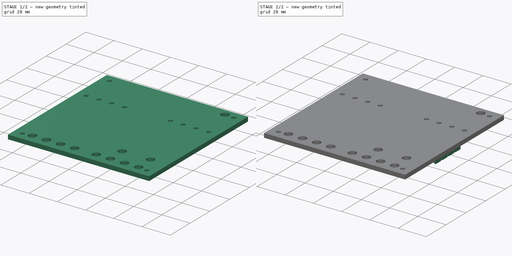
[diagram: build sequence overview — one tinted view per stage of 2, left to right]
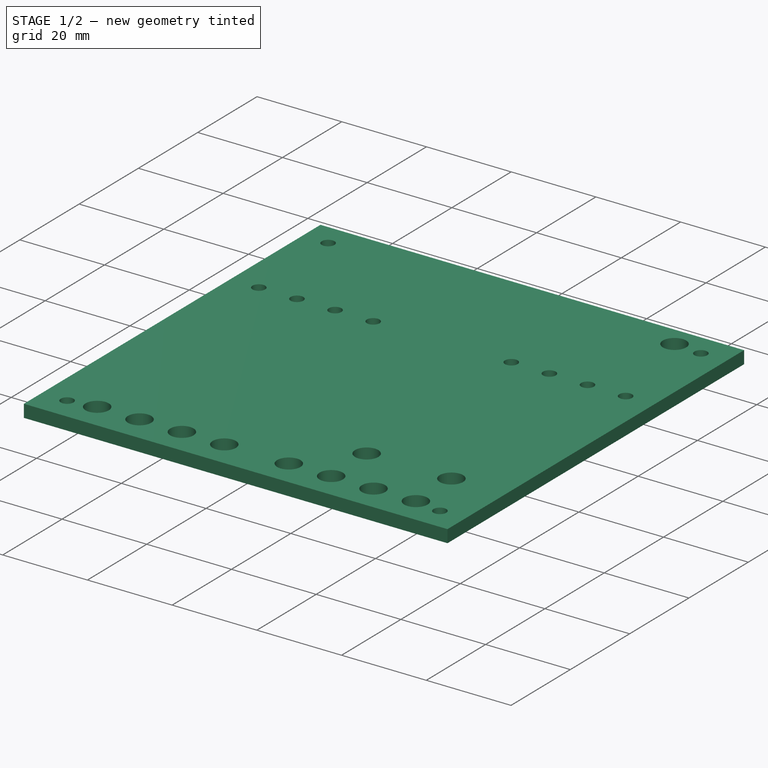
[diagram: stage 1 of 2 — iso view after this stage's code; geometry added in this stage tinted green]
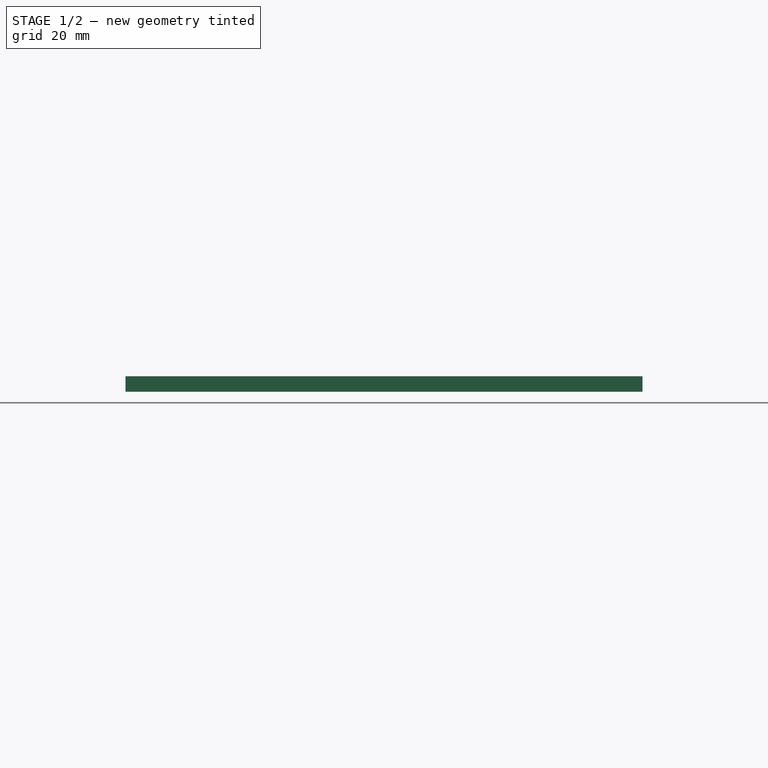
[diagram: stage 1 of 2 — front view after this stage's code; geometry added in this stage tinted green]
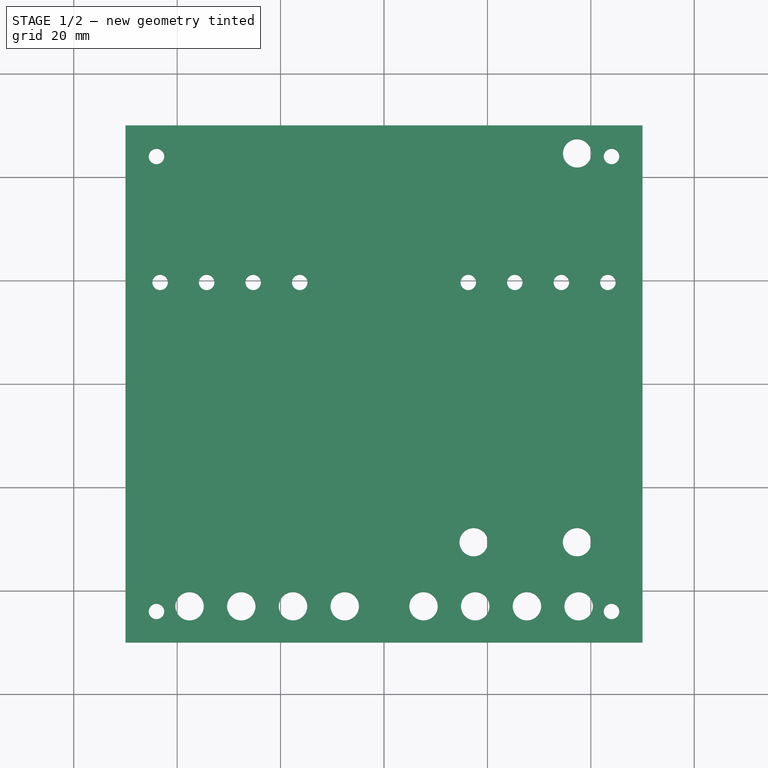
[diagram: stage 1 of 2 — top view after this stage's code; geometry added in this stage tinted green]
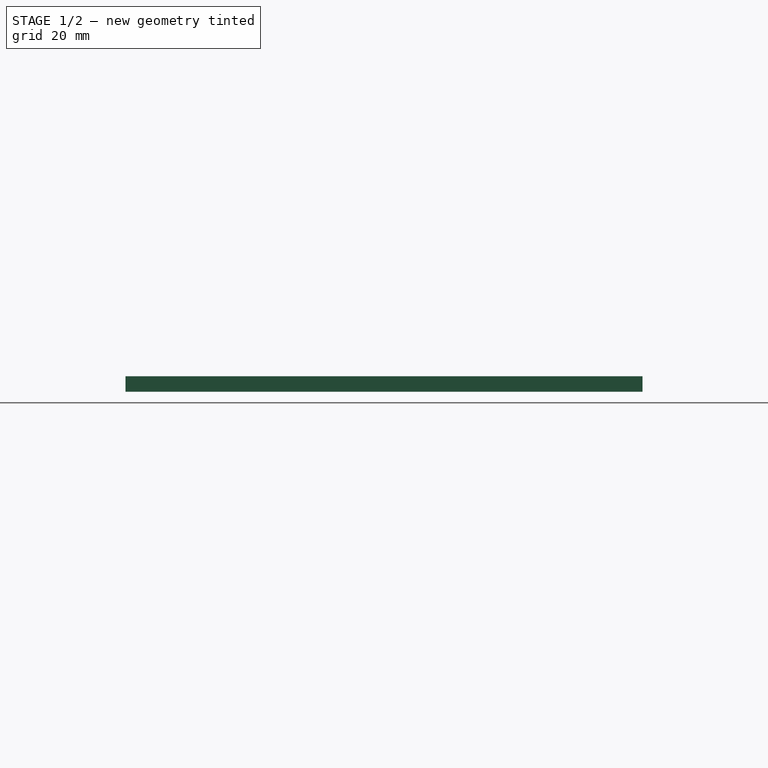
[diagram: stage 1 of 2 — right view after this stage's code; geometry added in this stage tinted green]
FCSTD DOCUMENT  (FreeCAD 0.21R33771 (Git))
Label: 7_seg_rev1_100mm_mounting_frame
License: All rights reserved
LicenseURL: http://en.wikipedia.org/wiki/All_rights_reserved
objects: App::MeasureDistance×5, Sketcher::SketchObject×4, PartDesign::Pad×2, PartDesign::Pocket×2, PartDesign::Body×1
note: 13 computed .brp shape members not serialized (recipe doc carries the construction recipe); baked Part::Feature solids carry a one-line shape summary decoded from their .brp

FEATURE [Sketcher::SketchObject] Sketch
  FullyConstrained = true
  MapMode = 5
  Support = -> [XY_Plane]
  sketch-geometry (28):
    g0: LineSegment StartX=-50 StartY=-50 StartZ=0 EndX=-50 EndY=50 EndZ=0
    g1: LineSegment StartX=-50 StartY=50 StartZ=0 EndX=50 EndY=50 EndZ=0
    g2: LineSegment StartX=50 StartY=50 StartZ=0 EndX=50 EndY=-50 EndZ=0
    g3: LineSegment StartX=50 StartY=-50 StartZ=0 EndX=-50 EndY=-50 EndZ=0
    g4: GeomPoint X=0 Y=0 Z=0
    g5: Circle CenterX=-44 CenterY=44 CenterZ=0 NormalX=0 NormalY=0 NormalZ=1 AngleXU=0 Radius=1.5
    g6: Circle CenterX=44 CenterY=44 CenterZ=0 NormalX=0 NormalY=0 NormalZ=1 AngleXU=0 Radius=1.5
    g7: Circle CenterX=44 CenterY=-44 CenterZ=0 NormalX=0 NormalY=0 NormalZ=1 AngleXU=0 Radius=1.5
    g8: Circle CenterX=-44 CenterY=-44 CenterZ=0 NormalX=0 NormalY=0 NormalZ=1 AngleXU=0 Radius=1.5
    g9: Circle CenterX=-43.3 CenterY=19.64 CenterZ=0 NormalX=0 NormalY=0 NormalZ=1 AngleXU=0 Radius=1.5
    g10: Circle CenterX=-34.3 CenterY=19.64 CenterZ=0 NormalX=0 NormalY=0 NormalZ=1 AngleXU=0 Radius=1.5
    g11: Circle CenterX=16.3 CenterY=19.64 CenterZ=0 NormalX=0 NormalY=0 NormalZ=1 AngleXU=0 Radius=1.5
    g12: Circle CenterX=25.3 CenterY=19.64 CenterZ=0 NormalX=0 NormalY=0 NormalZ=1 AngleXU=0 Radius=1.5
    g13: Circle CenterX=34.3 CenterY=19.64 CenterZ=0 NormalX=0 NormalY=0 NormalZ=1 AngleXU=0 Radius=1.5
    g14: Circle CenterX=43.3 CenterY=19.64 CenterZ=0 NormalX=0 NormalY=0 NormalZ=1 AngleXU=0 Radius=1.5
    g15: Circle CenterX=-25.3 CenterY=19.64 CenterZ=0 NormalX=0 NormalY=0 NormalZ=1 AngleXU=0 Radius=1.5
    g16: Circle CenterX=-16.3 CenterY=19.64 CenterZ=0 NormalX=0 NormalY=0 NormalZ=1 AngleXU=0 Radius=1.5
    g17: Circle CenterX=-37.6 CenterY=-43 CenterZ=0 NormalX=0 NormalY=0 NormalZ=1 AngleXU=0 Radius=2.75
    g18: Circle CenterX=-27.6 CenterY=-43 CenterZ=0 NormalX=0 NormalY=0 NormalZ=1 AngleXU=0 Radius=2.75
    g19: Circle CenterX=-17.6 CenterY=-43 CenterZ=0 NormalX=0 NormalY=0 NormalZ=1 AngleXU=0 Radius=2.75
    g20: Circle CenterX=-7.6 CenterY=-43 CenterZ=0 NormalX=0 NormalY=0 NormalZ=1 AngleXU=0 Radius=2.75
    g21: Circle CenterX=7.64 CenterY=-43 CenterZ=0 NormalX=0 NormalY=0 NormalZ=1 AngleXU=0 Radius=2.75
    g22: Circle CenterX=27.64 CenterY=-43 CenterZ=0 NormalX=0 NormalY=0 NormalZ=1 AngleXU=0 Radius=2.75
    g23: Circle CenterX=37.64 CenterY=-43 CenterZ=0 NormalX=0 NormalY=0 NormalZ=1 AngleXU=0 Radius=2.75
    g24: Circle CenterX=17.64 CenterY=-43 CenterZ=0 NormalX=0 NormalY=0 NormalZ=1 AngleXU=0 Radius=2.75
    g25: Circle CenterX=37.36 CenterY=44.6 CenterZ=0 NormalX=0 NormalY=0 NormalZ=1 AngleXU=0 Radius=2.75
    g26: Circle CenterX=37.34 CenterY=-30.6036 CenterZ=0 NormalX=0 NormalY=0 NormalZ=1 AngleXU=0 Radius=2.75
    g27: Circle CenterX=17.34 CenterY=-30.6036 CenterZ=0 NormalX=0 NormalY=0 NormalZ=1 AngleXU=0 Radius=2.75
  constraints (81):
    c: Coincident(g0,g1)
    c: Coincident(g1,g2)
    c: Coincident(g2,g3)
    c: Coincident(g3,g0)
    c: Horizontal(g1)
    c: Horizontal(g3)
    c: Vertical(g0)
    c: Vertical(g2)
    c: Symmetric(g1,g0,g4)
    c: Coincident(g4,g-1)
    c: DistanceY(g0,g0) = 100
    c: DistanceX(g3,g3) = 100
    c: Diameter(g5) = 3
    c: Diameter(g6) = 3
    c: Diameter(g7) = 3
    c: Diameter(g8) = 3
    c: Distance(g8,g-1) = 44
    c: Distance(g8,g-2) = 44
    c: Distance(g7,g-1) = 44
    c: Distance(g7,g-2) = 44
    c: Distance(g6,g-1) = 44
    c: Distance(g6,g-2) = 44
    c: Distance(g5,g-2) = 44
    c: Distance(g5,g-1) = 44
    c: Diameter(g20) = 5.5
    c: Diameter(g19) = 5.5
    c: Diameter(g18) = 5.5
    c: Diameter(g17) = 5.5
    c: Diameter(g21) = 5.5
    c: Diameter(g22) = 5.5
    c: Diameter(g23) = 5.5
    c: Diameter(g24) = 5.5
    c: Diameter(g9) = 3
    c: Diameter(g10) = 3
    c: Diameter(g15) = 3
    c: Diameter(g16) = 3
    c: Diameter(g11) = 3
    c: Diameter(g12) = 3
    c: Diameter(g13) = 3
    c: Diameter(g14) = 3
    c: Distance(g24,g3) = 7
    c: Distance(g17,g0) = 12.4
    c: Distance(g17,g3) = 7
    c: Distance(g18,g17) = 10
    c: Distance(g18,g3) = 7
    c: Distance(g19,g18) = 10
    c: Distance(g19,g3) = 7
    c: Distance(g20,g19) = 10
    c: Distance(g20,g3) = 7
    c: Distance(g21,g3) = 7
    c: Distance(g21,g20) = 15.24
    c: Distance(g24,g21) = 10
    c: Distance(g22,g24) = 10
    c: Distance(g22,g3) = 7
    c: Distance(g23,g22) = 10
    c: Distance(g23,g3) = 7
    c: Diameter(g25) = 5.5
    c: Distance(g25,g1) = 5.4
    c: Distance(g25,g2) = 12.64
    c: Diameter(g27) = 5.5
    c: Diameter(g26) = 5.5
    c: Distance(g26,g2) = 12.66
    c: Distance(g26,g23) = 12.4
    c: Distance(g27,g26) = 20
    c: Distance(g27,g24) = 12.4
    c: Distance(g9,g1) = 30.36
    c: Distance(g9,g0) = 6.7
    c: Distance(g10,g1) = 30.36
    c: Distance(g15,g1) = 30.36
    c: Distance(g16,g1) = 30.36
    c: Distance(g10,g9) = 9
    c: Distance(g10,g15) = 9
    c: Distance(g15,g16) = 9
    c: Distance(g11,g1) = 30.36
    c: Distance(g16,g11) = 32.6
    c: Distance(g12,g1) = 30.36
    c: Distance(g13,g1) = 30.36
    c: Distance(g14,g1) = 30.36
    c: Distance(g12,g11) = 9
    c: Distance(g13,g12) = 9
    c: Distance(g14,g13) = 9
FEATURE [PartDesign::Pad] Pad
  Direction = (0,0,1)
  Length = 3
  Length2 = 10
  Profile = -> Sketch
  ReferenceAxis = -> Sketch [N_Axis]
  Refine = true
  Type = 0
FEATURE [Sketcher::SketchObject] Sketch001
  FullyConstrained = true
  MapMode = 5
  Placement = pos=(0,0,0) rot=(1,0,0;3.14159rad)
  Support = -> [Pad]
  sketch-geometry (20):
    g0: LineSegment StartX=-35.6 StartY=35.1 StartZ=0 EndX=-49.6 EndY=35.1 EndZ=0
    g1: LineSegment StartX=-49.6 StartY=35.1 StartZ=0 EndX=-49.6 EndY=25.9 EndZ=0
    g2: LineSegment StartX=-49.6 StartY=25.9 StartZ=0 EndX=-35.6 EndY=25.9 EndZ=0
    g3: LineSegment StartX=-35.6 StartY=25.9 StartZ=0 EndX=-35.6 EndY=35.1 EndZ=0
    g4: LineSegment StartX=-6.2 StartY=37.17 StartZ=0 EndX=-16.5 EndY=37.17 EndZ=0
    g5: LineSegment StartX=-16.5 StartY=37.17 StartZ=0 EndX=-16.5 EndY=16.57 EndZ=0
    g6: LineSegment StartX=-16.5 StartY=16.57 StartZ=0 EndX=-6.2 EndY=16.57 EndZ=0
    g7: LineSegment StartX=-6.2 StartY=16.57 StartZ=0 EndX=-6.2 EndY=37.17 EndZ=0
    g8: LineSegment StartX=12.48 StartY=37.17 StartZ=0 EndX=2.18 EndY=37.17 EndZ=0
    g9: LineSegment StartX=2.18 StartY=37.17 StartZ=0 EndX=2.18 EndY=16.57 EndZ=0
    g10: LineSegment StartX=2.18 StartY=16.57 StartZ=0 EndX=12.48 EndY=16.57 EndZ=0
    g11: LineSegment StartX=12.48 StartY=16.57 StartZ=0 EndX=12.48 EndY=37.17 EndZ=0
    g12: LineSegment StartX=32.48 StartY=37.17 StartZ=0 EndX=22.18 EndY=37.17 EndZ=0
    g13: LineSegment StartX=22.18 StartY=37.17 StartZ=0 EndX=22.18 EndY=16.57 EndZ=0
    g14: LineSegment StartX=22.18 StartY=16.57 StartZ=0 EndX=32.48 EndY=16.57 EndZ=0
    g15: LineSegment StartX=32.48 StartY=16.57 StartZ=0 EndX=32.48 EndY=37.17 EndZ=0
    g16: LineSegment StartX=-44 StartY=10.15 StartZ=0 EndX=-7.8 EndY=10.15 EndZ=0
    g17: LineSegment StartX=-7.8 StartY=10.15 StartZ=0 EndX=-7.8 EndY=-0.15 EndZ=0
    g18: LineSegment StartX=-7.8 StartY=-0.15 StartZ=0 EndX=-44 EndY=-0.15 EndZ=0
    g19: LineSegment StartX=-44 StartY=-0.15 StartZ=0 EndX=-44 EndY=10.15 EndZ=0
  constraints (60):
    c: Coincident(g0,g1)
    c: Coincident(g1,g2)
    c: Coincident(g2,g3)
    c: Coincident(g3,g0)
    c: Horizontal(g0)
    c: Horizontal(g2)
    c: Vertical(g1)
    c: Vertical(g3)
    c: DistanceX(g2,g2) = 14
    c: DistanceY(g1,g1) = 9.2
    c: Distance(g0,g-2) = 49.6
    c: Distance(g0,g-1) = 35.1
    c: Coincident(g4,g5)
    c: Coincident(g5,g6)
    c: Coincident(g6,g7)
    c: Coincident(g7,g4)
    c: Horizontal(g4)
    c: Horizontal(g6)
    c: Vertical(g5)
    c: Vertical(g7)
    c: DistanceX(g4,g4) = 10.3
    c: DistanceY(g5,g5) = 20.6
    c: Coincident(g8,g9)
    c: Coincident(g9,g10)
    c: Coincident(g10,g11)
    c: Coincident(g11,g8)
    c: Horizontal(g8)
    c: Horizontal(g10)
    c: Vertical(g9)
    c: Vertical(g11)
    c: Equal(g4,g8) = 10.3
    c: Equal(g5,g9) = 20.6
    c: Coincident(g12,g13)
    c: Coincident(g13,g14)
    c: Coincident(g14,g15)
    c: Coincident(g15,g12)
    c: Horizontal(g12)
    c: Horizontal(g14)
    c: Vertical(g13)
    c: Vertical(g15)
    c: Distance(g4,g-1) = 37.17
    c: Distance(g4,g-2) = 16.5
    c: Distance(g8,g-1) = 37.17
    c: Distance(g12,g-1) = 37.17
    c: DistanceY(g13,g13) = 20.6
    c: DistanceX(g12,g12) = 10.3
    c: Distance(g8,g-2) = 12.48
    c: Distance(g12,g-2) = 32.48
    c: Coincident(g16,g17)
    c: Coincident(g17,g18)
    c: Coincident(g18,g19)
    c: Coincident(g19,g16)
    c: Horizontal(g16)
    c: Horizontal(g18)
    c: Vertical(g17)
    c: Vertical(g19)
    c: DistanceX(g16,g16) = 36.2
    c: DistanceY(g17,g17) = 10.3
    c: Distance(g18,g-2) = 44
    c: Distance(g16,g-1) = 10.15
FEATURE [App::MeasureDistance] Distance  label="Distance: 0,99 mm"
  Distance = 0.988163
  P1 = (49.9882,-19.02,-2)
  P2 = (49,-19.02,-2)
FEATURE [App::MeasureDistance] Distance001  label="Distance: 0,50 mm"
  Distance = 0.50002
  P1 = (-35.6007,-25.9,0)
  P2 = (-35.6042,-25.9029,0.5)
FEATURE [App::MeasureDistance] Distance002  label="Distance: 1,50 mm"
  Distance = 1.50049
  P1 = (43.6963,-19.0583,0)
  P2 = (43.7,-19.02,-1.5)
FEATURE [App::MeasureDistance] Distance003  label="Distance: 0,50 mm001"
  Distance = 0.503392
  P1 = (-6.16355,-16.5394,3.6e-15)
  P2 = (-6.20734,-16.578,0.5)
FEATURE [App::MeasureDistance] Distance004  label="Distance: 2,14 mm"
  Distance = 2.14366
  P1 = (42.422,-43.8387,3.6e-15)
  P2 = (40.3588,-43.2568,0)
FEATURE [PartDesign::Pocket] Pocket
  BaseFeature = -> Pad
  Direction = (0,0,1)
  Length = 0.5
  Length2 = 5
  Profile = -> Sketch001
  ReferenceAxis = -> Sketch001 [N_Axis]
  Refine = true
  Type = 0
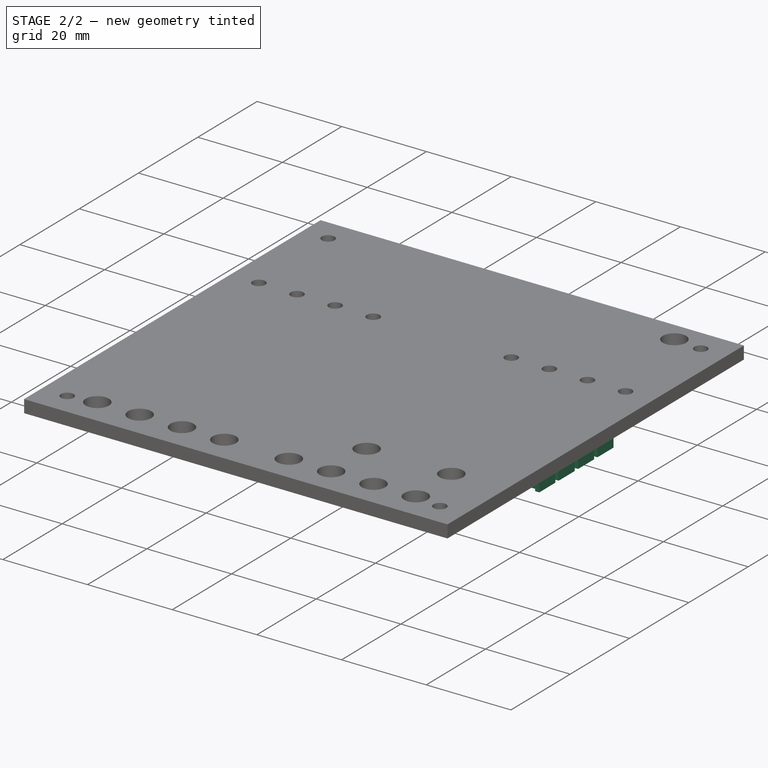
[diagram: stage 2 of 2 — iso view after this stage's code; geometry added in this stage tinted green]
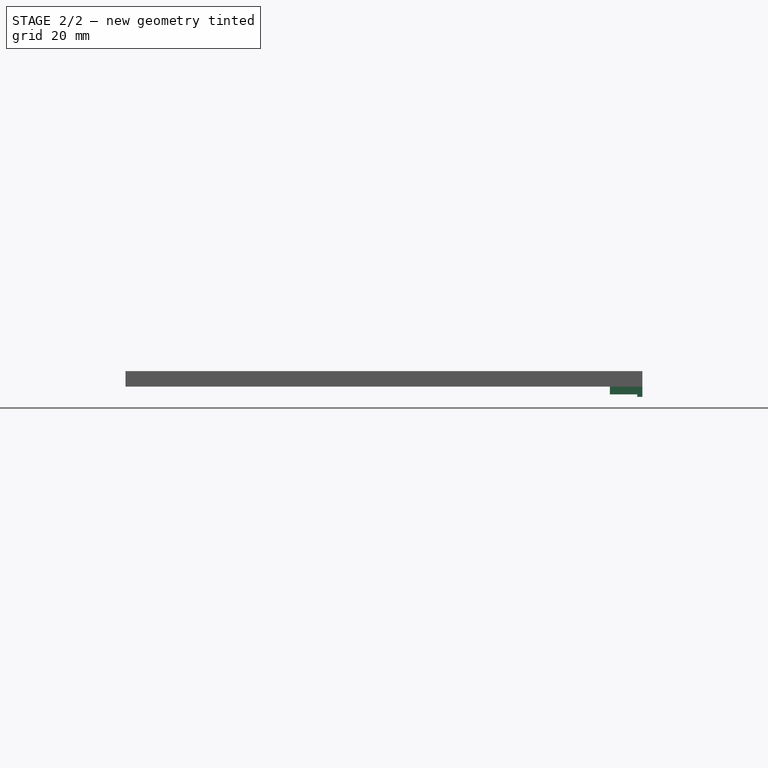
[diagram: stage 2 of 2 — front view after this stage's code; geometry added in this stage tinted green]
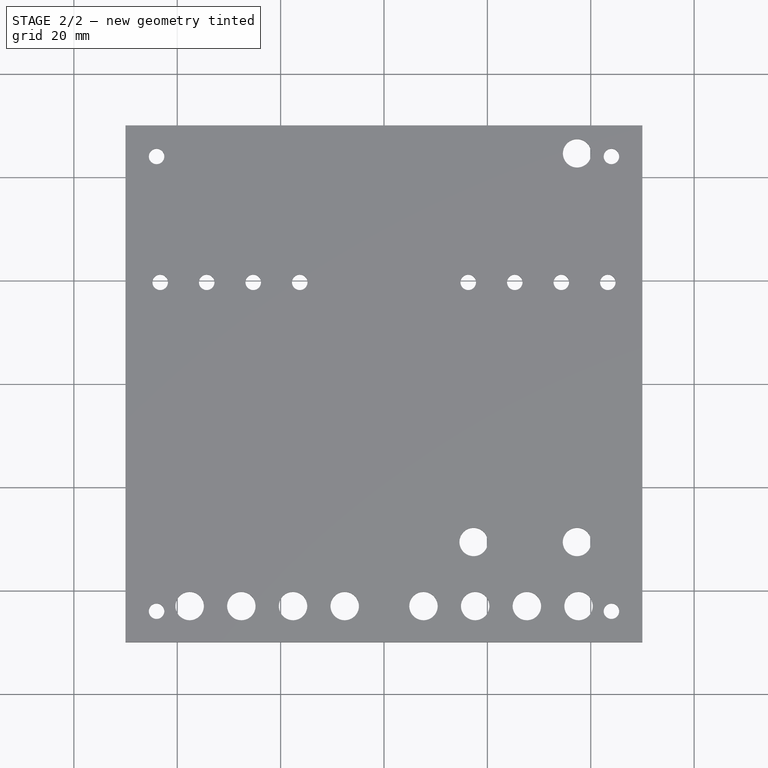
[diagram: stage 2 of 2 — top view after this stage's code; geometry added in this stage tinted green]
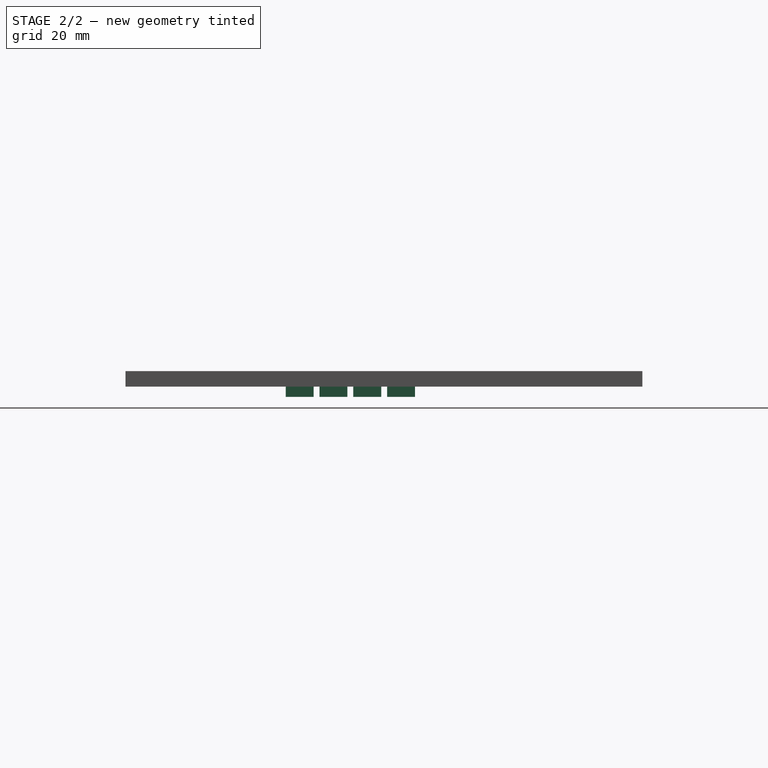
[diagram: stage 2 of 2 — right view after this stage's code; geometry added in this stage tinted green]
FEATURE [Sketcher::SketchObject] Sketch002
  FullyConstrained = true
  MapMode = 5
  Placement = pos=(0,0,0) rot=(1,0,0;3.14159rad)
  Support = -> [Pocket]
  sketch-geometry (16):
    g0: LineSegment StartX=50 StartY=-0.6 StartZ=0 EndX=43.7 EndY=-0.6 EndZ=0
    g1: LineSegment StartX=43.7 StartY=-0.6 StartZ=0 EndX=43.7 EndY=-6 EndZ=0
    g2: LineSegment StartX=43.7 StartY=-6 StartZ=0 EndX=50 EndY=-6 EndZ=0
    g3: LineSegment StartX=50 StartY=-6 StartZ=0 EndX=50 EndY=-0.6 EndZ=0
    g4: LineSegment StartX=50 StartY=5.94 StartZ=0 EndX=43.7 EndY=5.94 EndZ=0
    g5: LineSegment StartX=43.7 StartY=5.94 StartZ=0 EndX=43.7 EndY=0.54 EndZ=0
    g6: LineSegment StartX=43.7 StartY=0.54 StartZ=0 EndX=50 EndY=0.54 EndZ=0
    g7: LineSegment StartX=50 StartY=0.54 StartZ=0 EndX=50 EndY=5.94 EndZ=0
    g8: LineSegment StartX=50 StartY=12.48 StartZ=0 EndX=43.7 EndY=12.48 EndZ=0
    g9: LineSegment StartX=43.7 StartY=12.48 StartZ=0 EndX=43.7 EndY=7.08 EndZ=0
    g10: LineSegment StartX=43.7 StartY=7.08 StartZ=0 EndX=50 EndY=7.08 EndZ=0
    g11: LineSegment StartX=50 StartY=7.08 StartZ=0 EndX=50 EndY=12.48 EndZ=0
    g12: LineSegment StartX=50 StartY=19.02 StartZ=0 EndX=43.7 EndY=19.02 EndZ=0
    g13: LineSegment StartX=43.7 StartY=19.02 StartZ=0 EndX=43.7 EndY=13.62 EndZ=0
    g14: LineSegment StartX=43.7 StartY=13.62 StartZ=0 EndX=50 EndY=13.62 EndZ=0
    g15: LineSegment StartX=50 StartY=13.62 StartZ=0 EndX=50 EndY=19.02 EndZ=0
  constraints (48):
    c: Coincident(g0,g1)
    c: Coincident(g1,g2)
    c: Coincident(g2,g3)
    c: Coincident(g3,g0)
    c: Horizontal(g0)
    c: Horizontal(g2)
    c: Vertical(g1)
    c: Vertical(g3)
    c: Distance(g2,g-1) = 6
    c: DistanceY(g1,g1) = 5.4
    c: DistanceX(g2,g2) = 6.3
    c: Distance(g0,g-2) = 50
    c: Coincident(g4,g5)
    c: Coincident(g5,g6)
    c: Coincident(g6,g7)
    c: Coincident(g7,g4)
    c: Horizontal(g4)
    c: Horizontal(g6)
    c: Vertical(g5)
    c: Vertical(g7)
    c: Equal(g1,g5) = 5.4
    c: Equal(g2,g6) = 6.3
    c: Distance(g6,g-2) = 50
    c: Distance(g4,g0) = 6.54
    c: Coincident(g8,g9)
    c: Coincident(g9,g10)
    c: Coincident(g10,g11)
    c: Coincident(g11,g8)
    c: Horizontal(g8)
    c: Horizontal(g10)
    c: Vertical(g9)
    c: Vertical(g11)
    c: Equal(g1,g9) = 5.4
    c: Equal(g2,g10) = 6.3
    c: Coincident(g12,g13)
    c: Coincident(g13,g14)
    c: Coincident(g14,g15)
    c: Coincident(g15,g12)
    c: Horizontal(g12)
    c: Horizontal(g14)
    c: Vertical(g13)
    c: Vertical(g15)
    c: Equal(g9,g13) = 5.4
    c: Equal(g10,g14) = 6.3
    c: Distance(g12,g8) = 6.54
    c: Distance(g10,g-2) = 50
    c: Distance(g8,g4) = 6.54
    c: Distance(g12,g-2) = 50
FEATURE [PartDesign::Pad] Pad001
  BaseFeature = -> Pocket
  Direction = (0,0,-1)
  Length = 2
  Length2 = 10
  Profile = -> Sketch002
  ReferenceAxis = -> Sketch002 [N_Axis]
  Refine = true
  Type = 0
FEATURE [Sketcher::SketchObject] Sketch003
  FullyConstrained = true
  MapMode = 5
  Placement = pos=(0,0,-2) rot=(1,0,0;3.14159rad)
  Support = -> [Pad001]
  sketch-geometry (16):
    g0: LineSegment StartX=49 StartY=-6 StartZ=0 EndX=43.7 EndY=-6 EndZ=0
    g1: LineSegment StartX=43.7 StartY=-6 StartZ=0 EndX=43.7 EndY=-0.6 EndZ=0
    g2: LineSegment StartX=43.7 StartY=-0.6 StartZ=0 EndX=49 EndY=-0.6 EndZ=0
    g3: LineSegment StartX=49 StartY=-0.6 StartZ=0 EndX=49 EndY=-6 EndZ=0
    g4: LineSegment StartX=49 StartY=0.54 StartZ=0 EndX=43.7 EndY=0.54 EndZ=0
    g5: LineSegment StartX=43.7 StartY=0.54 StartZ=0 EndX=43.7 EndY=5.94 EndZ=0
    g6: LineSegment StartX=43.7 StartY=5.94 StartZ=0 EndX=49 EndY=5.94 EndZ=0
    g7: LineSegment StartX=49 StartY=5.94 StartZ=0 EndX=49 EndY=0.54 EndZ=0
    g8: LineSegment StartX=49 StartY=7.08 StartZ=0 EndX=43.7 EndY=7.08 EndZ=0
    g9: LineSegment StartX=43.7 StartY=7.08 StartZ=0 EndX=43.7 EndY=12.48 EndZ=0
    g10: LineSegment StartX=43.7 StartY=12.48 StartZ=0 EndX=49 EndY=12.48 EndZ=0
    g11: LineSegment StartX=49 StartY=12.48 StartZ=0 EndX=49 EndY=7.08 EndZ=0
    g12: LineSegment StartX=49 StartY=13.62 StartZ=0 EndX=43.7 EndY=13.62 EndZ=0
    g13: LineSegment StartX=43.7 StartY=13.62 StartZ=0 EndX=43.7 EndY=19.02 EndZ=0
    g14: LineSegment StartX=43.7 StartY=19.02 StartZ=0 EndX=49 EndY=19.02 EndZ=0
    g15: LineSegment StartX=49 StartY=19.02 StartZ=0 EndX=49 EndY=13.62 EndZ=0
  constraints (48):
    c: Coincident(g0,g1)
    c: Coincident(g1,g2)
    c: Coincident(g2,g3)
    c: Coincident(g3,g0)
    c: Horizontal(g0)
    c: Horizontal(g2)
    c: Vertical(g1)
    c: Vertical(g3)
    c: DistanceX(g2,g2) = 5.3
    c: DistanceY(g1,g1) = 5.4
    c: Distance(g1,g-2) = 43.7
    c: Distance(g0,g-1) = 6
    c: Coincident(g4,g5)
    c: Coincident(g5,g6)
    c: Coincident(g6,g7)
    c: Coincident(g7,g4)
    c: Horizontal(g4)
    c: Horizontal(g6)
    c: Vertical(g5)
    c: Vertical(g7)
    c: Equal(g2,g6) = 5.3
    c: Equal(g1,g5) = 5.4
    c: Distance(g4,g-2) = 49
    c: Distance(g4,g0) = 6.54
    c: Coincident(g8,g9)
    c: Coincident(g9,g10)
    c: Coincident(g10,g11)
    c: Coincident(g11,g8)
    c: Horizontal(g8)
    c: Horizontal(g10)
    c: Vertical(g9)
    c: Vertical(g11)
    c: Equal(g2,g10) = 5.3
    c: Equal(g1,g9) = 5.4
    c: Distance(g8,g4) = 6.54
    c: Distance(g8,g-2) = 49
    c: Coincident(g12,g13)
    c: Coincident(g13,g14)
    c: Coincident(g14,g15)
    c: Coincident(g15,g12)
    c: Horizontal(g12)
    c: Horizontal(g14)
    c: Vertical(g13)
    c: Vertical(g15)
    c: Equal(g2,g14) = 5.3
    c: Equal(g1,g13) = 5.4
    c: Distance(g13,g9) = 6.54
    c: Distance(g14,g-2) = 49
FEATURE [PartDesign::Pocket] Pocket001
  BaseFeature = -> Pad001
  Direction = (0,0,1)
  Length = 0.5
  Length2 = 5
  Profile = -> Sketch003
  ReferenceAxis = -> Sketch003 [N_Axis]
  Refine = true
  Type = 0
FEATURE [PartDesign::Body] Body
  Group = -> [Sketch,Pad,Sketch001,Pocket,Sketch002,Pad001,Sketch003,Pocket001]
  Origin = -> Origin
  Tip = -> Pocket001
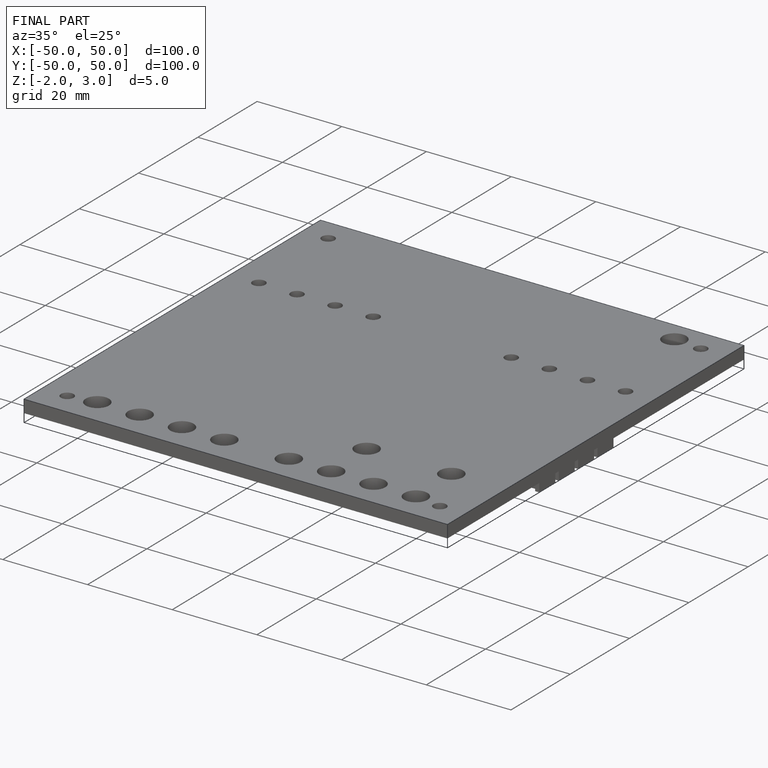
[diagram: finished part — iso view with bounding-box wireframe]
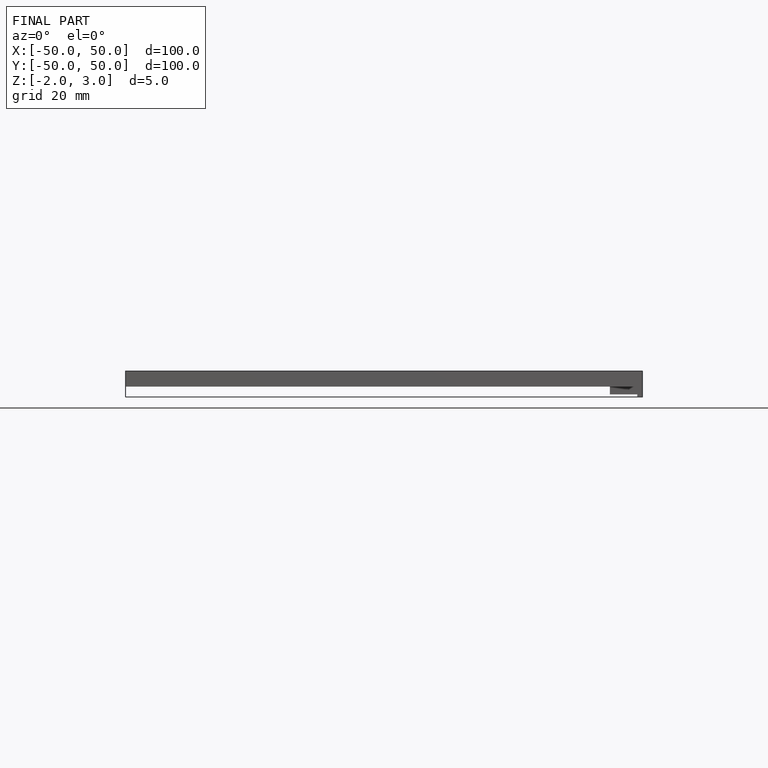
[diagram: finished part — front view with bounding-box wireframe]
